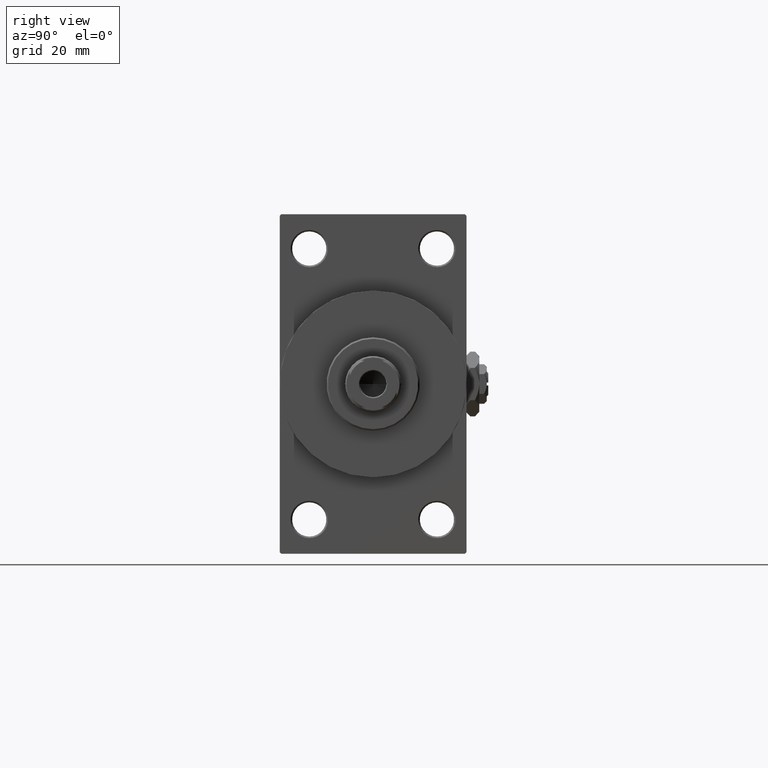
[diagram: clean part render]
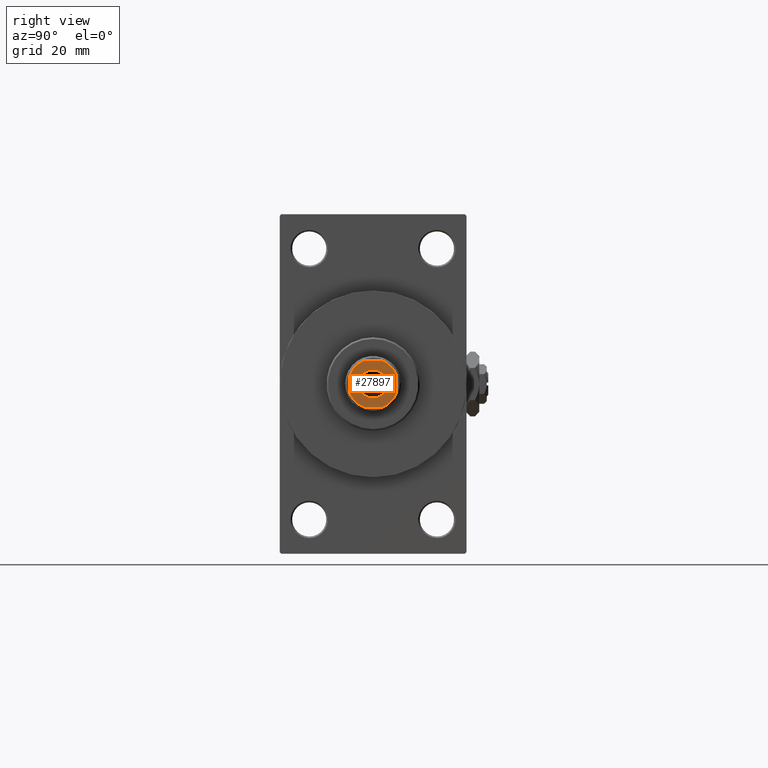
[diagram: same view with one face highlighted and labeled with its STEP entity id]
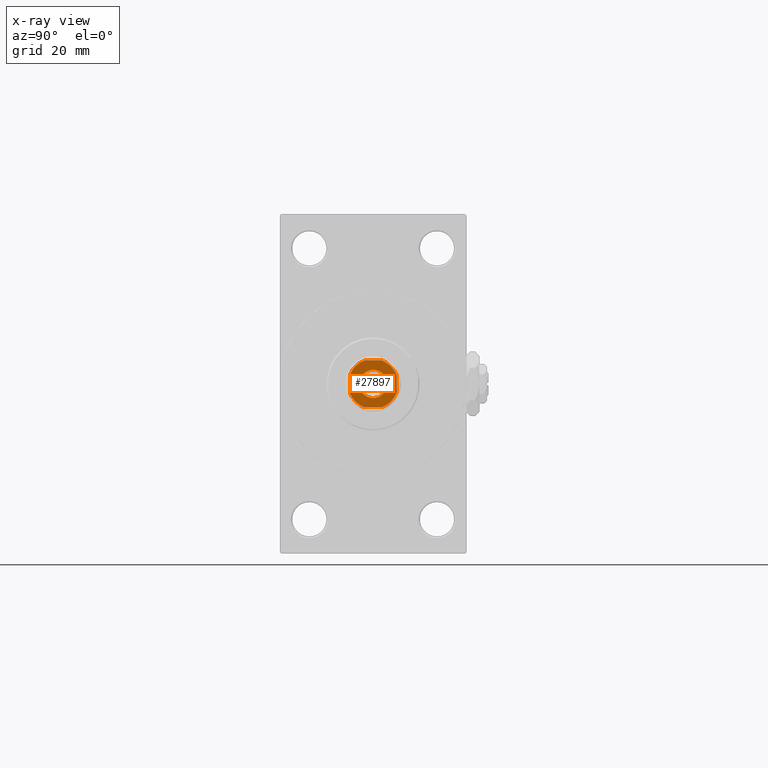
[diagram: x-ray of the same camera — body ghosted, the highlighted face saturated]
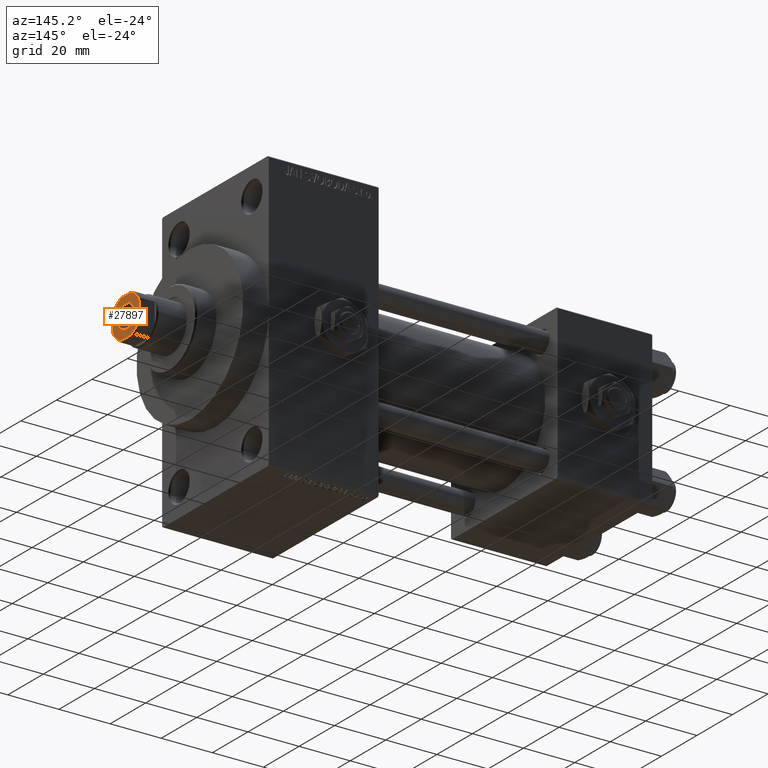
[diagram: same view with one face highlighted and labeled with its STEP entity id]
A machine part, right view. The second image highlights one B-rep face of the part: STEP entity #27897.
The next image is the same camera in x-ray: the body ghosted, the highlighted face saturated — about 0% of this face is hidden behind the body in this view.
A second angle (auxiliary view) of the same face is appended — the face is thin or edge-on in the first view.
In plain terms, the highlighted planar face has unit normal (1, 0, 0).
Its self-contained STEP definition (entity closure, byte-faithful):
#256 = LINE ( 'NONE', #41636, #35786 ) ;
#332 = DIRECTION ( 'NONE',  ( 1.000000000000000000, 0.000000000000000000, 0.000000000000000000 ) ) ;
#688 = AXIS2_PLACEMENT_3D ( 'NONE', #41326, #33592, #2707 ) ;
#1141 = DIRECTION ( 'NONE',  ( -0.000000000000000000, 0.000000000000000000, 1.000000000000000000 ) ) ;
#2387 = EDGE_CURVE ( 'NONE', #47162, #44517, #19569, .T. ) ;
#2707 = DIRECTION ( 'NONE',  ( 1.000000000000000000, 0.000000000000000000, 0.000000000000000000 ) ) ;
#2941 = LINE ( 'NONE', #44821, #18277 ) ;
#3439 = CARTESIAN_POINT ( 'NONE',  ( 2.783882181415044066, 7.499999999999999112, 148.0000000000000000 ) ) ;
#3441 = VERTEX_POINT ( 'NONE', #49194 ) ;
#3875 = VERTEX_POINT ( 'NONE', #4010 ) ;
#4010 = CARTESIAN_POINT ( 'NONE',  ( 4.550000000000012257, 0.000000000000000000, 148.0000000000000000 ) ) ;
#4139 = ORIENTED_EDGE ( 'NONE', *, *, #31271, .T. ) ;
#7720 = DIRECTION ( 'NONE',  ( 1.156482317317871725E-16, -1.000000000000000000, 0.000000000000000000 ) ) ;
#7972 = VERTEX_POINT ( 'NONE', #11256 ) ;
#8601 = CARTESIAN_POINT ( 'NONE',  ( 0.000000000000000000, 0.000000000000000000, 148.0000000000000000 ) ) ;
#8987 = AXIS2_PLACEMENT_3D ( 'NONE', #29409, #10475, #14233 ) ;
#9316 = EDGE_CURVE ( 'NONE', #3441, #3875, #43159, .T. ) ;
#9474 = DIRECTION ( 'NONE',  ( 1.000000000000000000, 0.000000000000000000, 0.000000000000000000 ) ) ;
#10259 = VECTOR ( 'NONE', #28013, 1000.000000000000000 ) ;
#10475 = DIRECTION ( 'NONE',  ( 0.000000000000000000, -0.000000000000000000, -1.000000000000000000 ) ) ;
#11256 = CARTESIAN_POINT ( 'NONE',  ( -7.499999999999999112, 2.783882181415124002, 148.0000000000000000 ) ) ;
#11989 = ORIENTED_EDGE ( 'NONE', *, *, #9316, .T. ) ;
#12539 = EDGE_CURVE ( 'NONE', #29127, #47162, #25739, .T. ) ;
#12684 = DIRECTION ( 'NONE',  ( 0.000000000000000000, -0.000000000000000000, -1.000000000000000000 ) ) ;
#14179 = ORIENTED_EDGE ( 'NONE', *, *, #12539, .T. ) ;
#14233 = DIRECTION ( 'NONE',  ( 1.000000000000000000, 0.000000000000000000, 0.000000000000000000 ) ) ;
#14527 = DIRECTION ( 'NONE',  ( 1.000000000000000000, 0.000000000000000000, 0.000000000000000000 ) ) ;
#16459 = VECTOR ( 'NONE', #9474, 1000.000000000000000 ) ;
#16998 = ORIENTED_EDGE ( 'NONE', *, *, #43091, .T. ) ;
#18141 = CIRCLE ( 'NONE', #40429, 8.000000000000039080 ) ;
#18161 = FACE_BOUND ( 'NONE', #24592, .T. ) ;
#18277 = VECTOR ( 'NONE', #29854, 1000.000000000000000 ) ;
#18974 = CARTESIAN_POINT ( 'NONE',  ( -2.783882181415123558, 7.499999999999999112, 148.0000000000000000 ) ) ;
#18985 = CARTESIAN_POINT ( 'NONE',  ( 0.000000000000000000, 0.000000000000000000, 148.0000000000000000 ) ) ;
#19569 = LINE ( 'NONE', #39487, #10259 ) ;
#19769 = DIRECTION ( 'NONE',  ( -0.000000000000000000, 0.000000000000000000, 1.000000000000000000 ) ) ;
#20379 = CARTESIAN_POINT ( 'NONE',  ( 0.000000000000000000, 0.000000000000000000, 148.0000000000000000 ) ) ;
#21125 = CARTESIAN_POINT ( 'NONE',  ( 0.000000000000000000, 0.000000000000000000, 148.0000000000000000 ) ) ;
#21136 = ORIENTED_EDGE ( 'NONE', *, *, #23639, .T. ) ;
#21279 = AXIS2_PLACEMENT_3D ( 'NONE', #20379, #27613, #39569 ) ;
#22070 = CIRCLE ( 'NONE', #21279, 8.000000000000010658 ) ;
#23108 = VERTEX_POINT ( 'NONE', #48054 ) ;
#23352 = ORIENTED_EDGE ( 'NONE', *, *, #2387, .T. ) ;
#23639 = EDGE_CURVE ( 'NONE', #23108, #27879, #45969, .T. ) ;
#24592 = EDGE_LOOP ( 'NONE', ( #16998, #11989 ) ) ;
#25002 = EDGE_CURVE ( 'NONE', #27879, #47522, #22070, .T. ) ;
#25355 = EDGE_CURVE ( 'NONE', #46357, #23108, #30081, .T. ) ;
#25739 = CIRCLE ( 'NONE', #46427, 8.000000000000010658 ) ;
#25869 = EDGE_CURVE ( 'NONE', #44517, #7972, #18141, .T. ) ;
#26721 = ORIENTED_EDGE ( 'NONE', *, *, #25355, .T. ) ;
#27307 = CIRCLE ( 'NONE', #8987, 4.550000000000012257 ) ;
#27613 = DIRECTION ( 'NONE',  ( -0.000000000000000000, 0.000000000000000000, 1.000000000000000000 ) ) ;
#27879 = VERTEX_POINT ( 'NONE', #29362 ) ;
#27897 = ADVANCED_FACE ( 'NONE', ( #18161, #41572 ), #30346, .T. ) ;
#28013 = DIRECTION ( 'NONE',  ( -1.000000000000000000, -1.156482317317871478E-16, -0.000000000000000000 ) ) ;
#29127 = VERTEX_POINT ( 'NONE', #42643 ) ;
#29362 = CARTESIAN_POINT ( 'NONE',  ( 2.783882181415042290, -7.500000000000000000, 148.0000000000000000 ) ) ;
#29409 = CARTESIAN_POINT ( 'NONE',  ( 0.000000000000000000, 0.000000000000000000, 148.0000000000000000 ) ) ;
#29733 = EDGE_CURVE ( 'NONE', #47522, #29127, #2941, .T. ) ;
#29854 = DIRECTION ( 'NONE',  ( -1.156482317317871478E-16, 1.000000000000000000, -0.000000000000000000 ) ) ;
#30081 = CIRCLE ( 'NONE', #44392, 8.000000000000040856 ) ;
#30346 = PLANE ( 'NONE',  #688 ) ;
#31046 = DIRECTION ( 'NONE',  ( 1.000000000000000000, 0.000000000000000000, 0.000000000000000000 ) ) ;
#31160 = ORIENTED_EDGE ( 'NONE', *, *, #29733, .T. ) ;
#31271 = EDGE_CURVE ( 'NONE', #7972, #46357, #256, .T. ) ;
#32584 = DIRECTION ( 'NONE',  ( 1.000000000000000000, 0.000000000000000000, 0.000000000000000000 ) ) ;
#33592 = DIRECTION ( 'NONE',  ( -0.000000000000000000, 0.000000000000000000, 1.000000000000000000 ) ) ;
#34715 = CARTESIAN_POINT ( 'NONE',  ( 0.000000000000000000, 0.000000000000000000, 148.0000000000000000 ) ) ;
#35786 = VECTOR ( 'NONE', #7720, 1000.000000000000000 ) ;
#35925 = ORIENTED_EDGE ( 'NONE', *, *, #25869, .T. ) ;
#39487 = CARTESIAN_POINT ( 'NONE',  ( -7.500000000000000000, 7.499999999999998224, 148.0000000000000000 ) ) ;
#39569 = DIRECTION ( 'NONE',  ( 1.000000000000000000, 0.000000000000000000, 0.000000000000000000 ) ) ;
#40429 = AXIS2_PLACEMENT_3D ( 'NONE', #18985, #45181, #14527 ) ;
#40636 = ORIENTED_EDGE ( 'NONE', *, *, #25002, .T. ) ;
#41326 = CARTESIAN_POINT ( 'NONE',  ( 0.000000000000000000, 0.000000000000000000, 148.0000000000000000 ) ) ;
#41572 = FACE_OUTER_BOUND ( 'NONE', #44033, .T. ) ;
#41636 = CARTESIAN_POINT ( 'NONE',  ( -7.500000000000000000, 7.499999999999998224, 148.0000000000000000 ) ) ;
#42643 = CARTESIAN_POINT ( 'NONE',  ( 7.500000000000000888, 2.783882181415040513, 148.0000000000000000 ) ) ;
#43091 = EDGE_CURVE ( 'NONE', #3875, #3441, #27307, .T. ) ;
#43159 = CIRCLE ( 'NONE', #44763, 4.550000000000012257 ) ;
#43392 = CARTESIAN_POINT ( 'NONE',  ( -7.499999999999998224, -7.500000000000000000, 148.0000000000000000 ) ) ;
#44033 = EDGE_LOOP ( 'NONE', ( #31160, #14179, #23352, #35925, #4139, #26721, #21136, #40636 ) ) ;
#44392 = AXIS2_PLACEMENT_3D ( 'NONE', #8601, #1141, #31046 ) ;
#44517 = VERTEX_POINT ( 'NONE', #18974 ) ;
#44763 = AXIS2_PLACEMENT_3D ( 'NONE', #21125, #12684, #32584 ) ;
#44821 = CARTESIAN_POINT ( 'NONE',  ( 7.500000000000000000, 7.500000000000000000, 148.0000000000000000 ) ) ;
#45181 = DIRECTION ( 'NONE',  ( -0.000000000000000000, 0.000000000000000000, 1.000000000000000000 ) ) ;
#45197 = CARTESIAN_POINT ( 'NONE',  ( -7.499999999999997335, -2.783882181415132884, 148.0000000000000000 ) ) ;
#45969 = LINE ( 'NONE', #43392, #16459 ) ;
#46357 = VERTEX_POINT ( 'NONE', #45197 ) ;
#46427 = AXIS2_PLACEMENT_3D ( 'NONE', #34715, #19769, #332 ) ;
#47162 = VERTEX_POINT ( 'NONE', #3439 ) ;
#47522 = VERTEX_POINT ( 'NONE', #48754 ) ;
#48054 = CARTESIAN_POINT ( 'NONE',  ( -2.783882181415127555, -7.500000000000000000, 148.0000000000000000 ) ) ;
#48754 = CARTESIAN_POINT ( 'NONE',  ( 7.500000000000000888, -2.783882181415038737, 148.0000000000000000 ) ) ;
#49194 = CARTESIAN_POINT ( 'NONE',  ( -4.550000000000012257, 5.572142936120472118E-16, 148.0000000000000000 ) ) ;